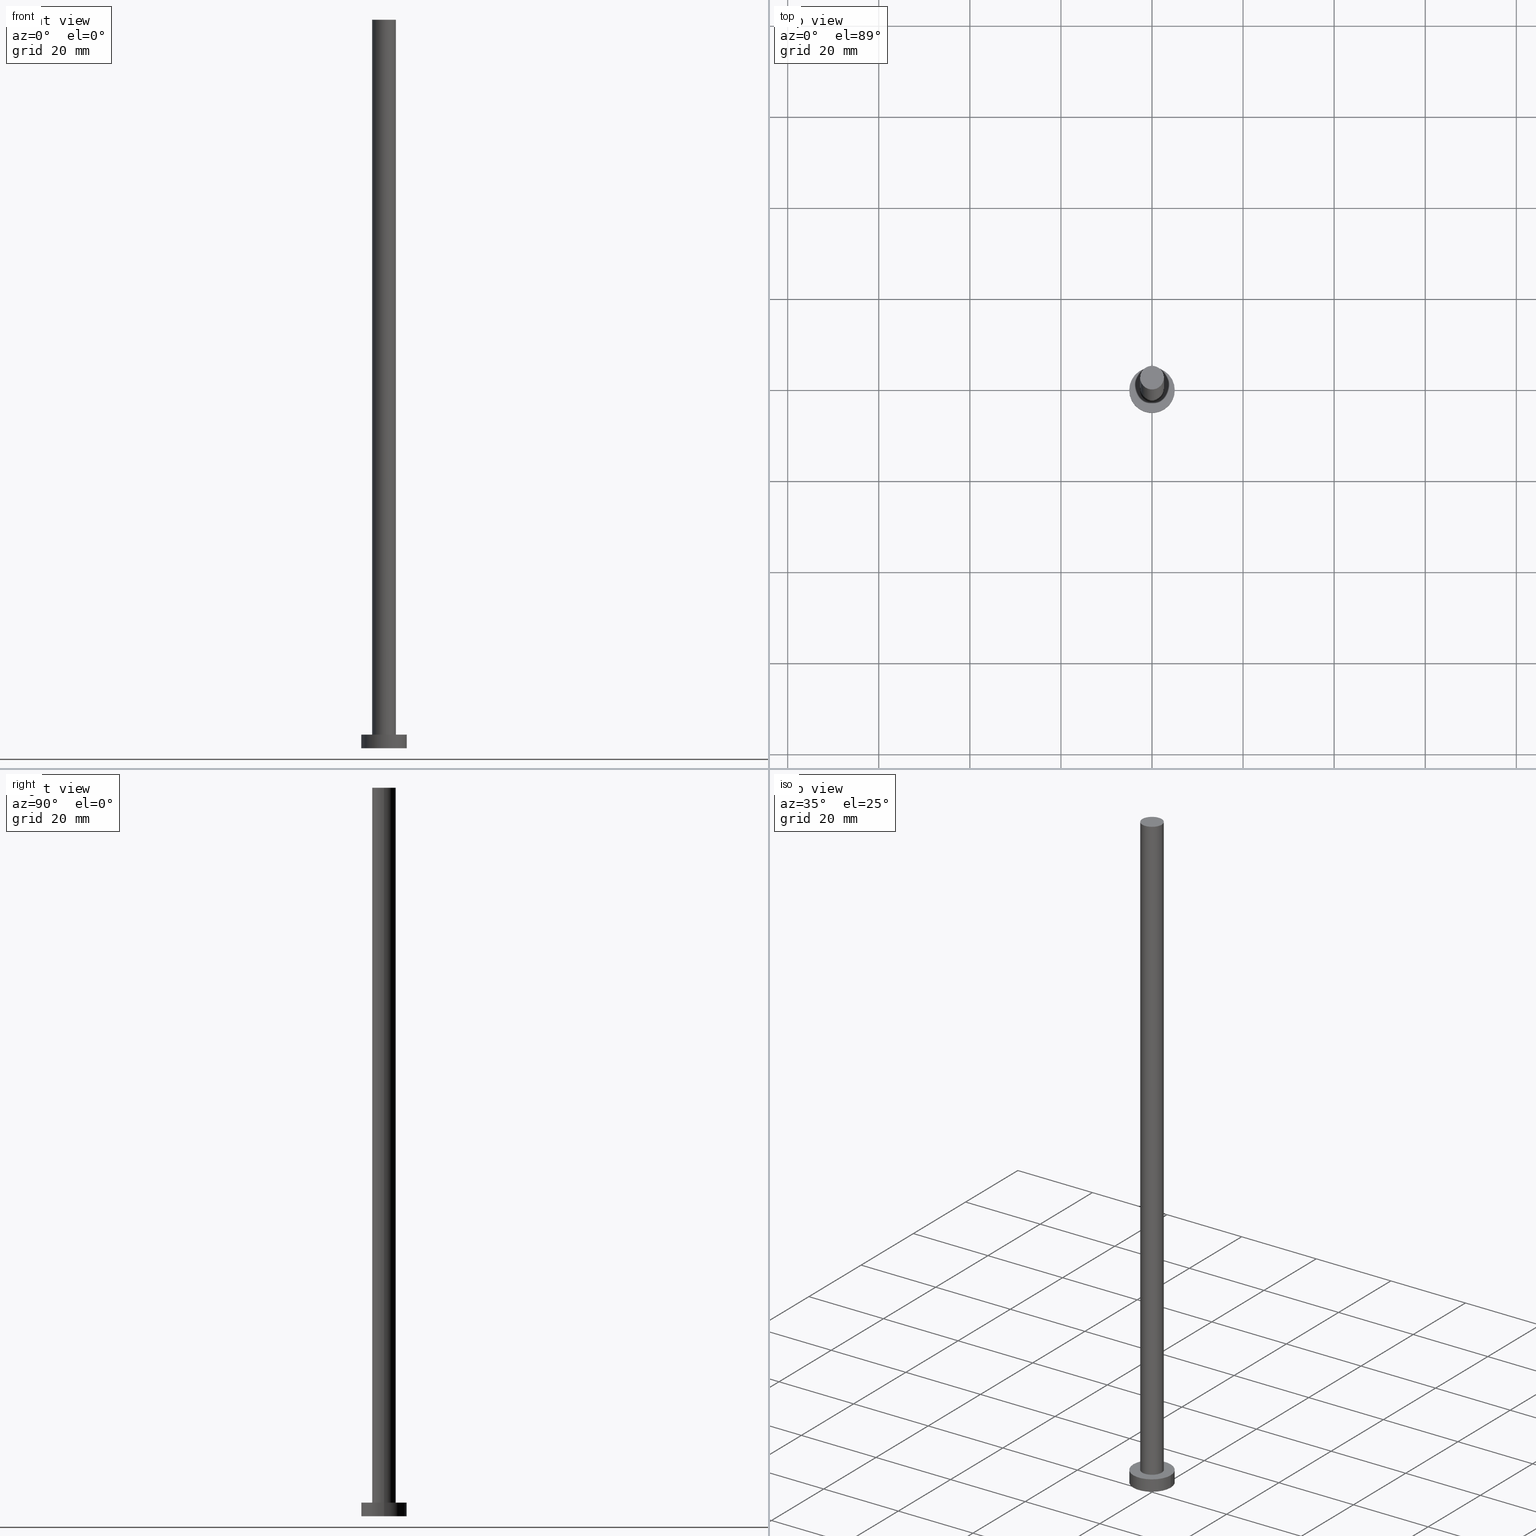
[diagram: canonical four-view strip — front | top / right | iso, engineering-drawing reading convention]
A machine part, canonical four-view strip (front | top / right | iso — engineering-drawing reading convention). The complete STEP part file that produces these views, byte-faithful:
ISO-10303-21;
HEADER;
FILE_DESCRIPTION (( 'STEP AP203' ),
    '1' );
FILE_NAME ('0e90.STEP',
    '2023-02-13T15:49:09',
    ( '' ),
    ( '' ),
    'SwSTEP 2.0',
    'SolidWorks 2019',
    '' );
FILE_SCHEMA (( 'CONFIG_CONTROL_DESIGN' ));
ENDSEC;

DATA;
#1 = ADVANCED_FACE ( 'NONE', ( #232 ), #79, .T. ) ;
#2 = AXIS2_PLACEMENT_3D ( 'NONE', #12, #132, #185 ) ;
#3 = DIRECTION ( 'NONE',  ( -0.000000000000000000, -0.000000000000000000, -1.000000000000000000 ) ) ;
#4 = VECTOR ( 'NONE', #41, 1000.000000000000000 ) ;
#5 = EDGE_CURVE ( 'NONE', #149, #227, #198, .T. ) ;
#6 = DATE_TIME_ROLE ( 'creation_date' ) ;
#7 = ORIENTED_EDGE ( 'NONE', *, *, #10, .T. ) ;
#8 = AXIS2_PLACEMENT_3D ( 'NONE', #93, #50, #172 ) ;
#9 = PLANE ( 'NONE',  #8 ) ;
#10 = EDGE_CURVE ( 'NONE', #98, #206, #136, .T. ) ;
#11 = LINE ( 'NONE', #156, #225 ) ;
#12 = CARTESIAN_POINT ( 'NONE',  ( 0.000000000000000000, 0.000000000000000000, 0.000000000000000000 ) ) ;
#13 = DIRECTION ( 'NONE',  ( -1.000000000000000000, 0.000000000000000000, 0.000000000000000000 ) ) ;
#14 = PRODUCT_DEFINITION_SHAPE ( 'NONE', 'NONE',  #17 ) ;
#15 = APPROVAL_DATE_TIME ( #190, #230 ) ;
#16 = ORIENTED_EDGE ( 'NONE', *, *, #5, .T. ) ;
#17 = PRODUCT_DEFINITION ( 'NEZN�M�', '', #91, #119 ) ;
#18 = DIRECTION ( 'NONE',  ( 0.000000000000000000, 0.000000000000000000, 1.000000000000000000 ) ) ;
#19 = APPLICATION_CONTEXT ( 'configuration controlled 3d designs of mechanical parts and assemblies' ) ;
#20 = PERSON_AND_ORGANIZATION_ROLE ( 'classification_officer' ) ;
#21 = ADVANCED_FACE ( 'NONE', ( #72 ), #229, .T. ) ;
#22 = EDGE_CURVE ( 'NONE', #188, #245, #192, .T. ) ;
#23 = CARTESIAN_POINT ( 'NONE',  ( 5.000000000000000000, 6.123233995736766282E-16, 0.000000000000000000 ) ) ;
#24 = ORIENTED_EDGE ( 'NONE', *, *, #199, .T. ) ;
#25 = ADVANCED_FACE ( 'NONE', ( #154, #226 ), #49, .T. ) ;
#26 = APPROVAL_ROLE ( '' ) ;
#27 = COORDINATED_UNIVERSAL_TIME_OFFSET ( 1, 0, .AHEAD. ) ;
#28 = ORIENTED_EDGE ( 'NONE', *, *, #181, .T. ) ;
#29 = EDGE_CURVE ( 'NONE', #74, #118, #11, .T. ) ;
#30 = DIRECTION ( 'NONE',  ( 0.000000000000000000, 0.000000000000000000, 1.000000000000000000 ) ) ;
#31 = LOCAL_TIME ( 16, 49, 9.000000000000000000, #159 ) ;
#32 = APPLICATION_PROTOCOL_DEFINITION ( 'international standard', 'config_control_design', 1994, #59 ) ;
#33 = CARTESIAN_POINT ( 'NONE',  ( 0.000000000000000000, 0.000000000000000000, 3.000000000000000000 ) ) ;
#34 = PERSON_AND_ORGANIZATION_ROLE ( 'creator' ) ;
#35 = ORIENTED_EDGE ( 'NONE', *, *, #100, .F. ) ;
#36 = COORDINATED_UNIVERSAL_TIME_OFFSET ( 1, 0, .AHEAD. ) ;
#37 = DIRECTION ( 'NONE',  ( -0.000000000000000000, -0.000000000000000000, -1.000000000000000000 ) ) ;
#38 = AXIS2_PLACEMENT_3D ( 'NONE', #130, #200, #87 ) ;
#39 = EDGE_CURVE ( 'NONE', #188, #149, #175, .T. ) ;
#40 = CARTESIAN_POINT ( 'NONE',  ( 0.000000000000000000, 0.000000000000000000, 3.000000000000000000 ) ) ;
#41 = DIRECTION ( 'NONE',  ( -0.000000000000000000, -0.000000000000000000, -1.000000000000000000 ) ) ;
#42 = EDGE_LOOP ( 'NONE', ( #140, #189 ) ) ;
#43 = APPROVAL_PERSON_ORGANIZATION ( #250, #65, #78 ) ;
#44 = EDGE_LOOP ( 'NONE', ( #46, #121, #28, #86 ) ) ;
#45 = CC_DESIGN_PERSON_AND_ORGANIZATION_ASSIGNMENT ( #157, #34, ( #91 ) ) ;
#46 = ORIENTED_EDGE ( 'NONE', *, *, #166, .F. ) ;
#47 = VECTOR ( 'NONE', #180, 1000.000000000000000 ) ;
#48 = FACE_OUTER_BOUND ( 'NONE', #203, .T. ) ;
#49 = PLANE ( 'NONE',  #178 ) ;
#50 = DIRECTION ( 'NONE',  ( 0.000000000000000000, 0.000000000000000000, 1.000000000000000000 ) ) ;
#51 = ORIENTED_EDGE ( 'NONE', *, *, #117, .F. ) ;
#52 = PERSON_AND_ORGANIZATION_ROLE ( 'design_supplier' ) ;
#53 = ORIENTED_EDGE ( 'NONE', *, *, #39, .T. ) ;
#54 = PRODUCT ( '0e90', '0e90', '', ( #95 ) ) ;
#55 = DIRECTION ( 'NONE',  ( 0.000000000000000000, 0.000000000000000000, 1.000000000000000000 ) ) ;
#56 = DATE_AND_TIME ( #179, #81 ) ;
#57 = CARTESIAN_POINT ( 'NONE',  ( -2.600000000000000089, 0.000000000000000000, 160.0000000000000000 ) ) ;
#58 = LOCAL_TIME ( 16, 49, 9.000000000000000000, #170 ) ;
#59 = APPLICATION_CONTEXT ( 'configuration controlled 3d designs of mechanical parts and assemblies' ) ;
#60 = DIRECTION ( 'NONE',  ( 0.000000000000000000, 0.000000000000000000, 1.000000000000000000 ) ) ;
#61 = APPROVAL_DATE_TIME ( #182, #110 ) ;
#62 = ADVANCED_BREP_SHAPE_REPRESENTATION ( '0e90', ( #108, #2 ), #123 ) ;
#63 = EDGE_CURVE ( 'NONE', #118, #206, #134, .T. ) ;
#64 = EDGE_LOOP ( 'NONE', ( #176, #191 ) ) ;
#65 = APPROVAL ( #90, 'NEUR�EN�' ) ;
#66 = CIRCLE ( 'NONE', #208, 2.600000000000000089 ) ;
#67 = CLOSED_SHELL ( 'NONE', ( #197, #21, #220, #25, #247, #1, #224 ) ) ;
#68 = FACE_OUTER_BOUND ( 'NONE', #112, .T. ) ;
#69 = CARTESIAN_POINT ( 'NONE',  ( 2.600000000000000089, 3.184081677783118191E-16, 3.000000000000000000 ) ) ;
#70 = ORIENTED_EDGE ( 'NONE', *, *, #162, .F. ) ;
#71 = APPROVAL_DATE_TIME ( #75, #65 ) ;
#72 = FACE_OUTER_BOUND ( 'NONE', #139, .T. ) ;
#73 = PERSON_AND_ORGANIZATION ( #169, #223 ) ;
#74 = VERTEX_POINT ( 'NONE', #255 ) ;
#75 = DATE_AND_TIME ( #209, #31 ) ;
#76 = CARTESIAN_POINT ( 'NONE',  ( -2.600000000000000089, 0.000000000000000000, 160.0000000000000000 ) ) ;
#77 = CC_DESIGN_PERSON_AND_ORGANIZATION_ASSIGNMENT ( #102, #20, ( #238 ) ) ;
#78 = APPROVAL_ROLE ( '' ) ;
#79 = CYLINDRICAL_SURFACE ( 'NONE', #210, 2.600000000000000089 ) ;
#80 = LINE ( 'NONE', #241, #4 ) ;
#81 = LOCAL_TIME ( 16, 49, 9.000000000000000000, #254 ) ;
#82 = APPROVAL_ROLE ( '' ) ;
#83 = CARTESIAN_POINT ( 'NONE',  ( 0.000000000000000000, 0.000000000000000000, 3.000000000000000000 ) ) ;
#84 = SHAPE_DEFINITION_REPRESENTATION ( #14, #62 ) ;
#85 = AXIS2_PLACEMENT_3D ( 'NONE', #183, #3, #242 ) ;
#86 = ORIENTED_EDGE ( 'NONE', *, *, #39, .F. ) ;
#87 = DIRECTION ( 'NONE',  ( -1.000000000000000000, 0.000000000000000000, 0.000000000000000000 ) ) ;
#88 = CARTESIAN_POINT ( 'NONE',  ( 0.000000000000000000, 0.000000000000000000, 160.0000000000000000 ) ) ;
#89 = ORIENTED_EDGE ( 'NONE', *, *, #63, .F. ) ;
#90 = APPROVAL_STATUS ( 'not_yet_approved' ) ;
#91 = PRODUCT_DEFINITION_FORMATION_WITH_SPECIFIED_SOURCE ( 'LIBOVOLN�', '', #54, .NOT_KNOWN. ) ;
#92 = EDGE_LOOP ( 'NONE', ( #35, #158, #53, #16 ) ) ;
#93 = CARTESIAN_POINT ( 'NONE',  ( 0.000000000000000000, 0.000000000000000000, 0.000000000000000000 ) ) ;
#94 = AXIS2_PLACEMENT_3D ( 'NONE', #33, #37, #243 ) ;
#95 = MECHANICAL_CONTEXT ( 'NONE', #19, 'mechanical' ) ;
#96 = DIRECTION ( 'NONE',  ( -0.000000000000000000, -0.000000000000000000, -1.000000000000000000 ) ) ;
#97 =( NAMED_UNIT ( * ) PLANE_ANGLE_UNIT ( ) SI_UNIT ( $, .RADIAN. ) );
#98 = VERTEX_POINT ( 'NONE', #239 ) ;
#99 = VECTOR ( 'NONE', #213, 1000.000000000000000 ) ;
#100 = EDGE_CURVE ( 'NONE', #245, #227, #80, .T. ) ;
#101 = PERSON_AND_ORGANIZATION ( #169, #223 ) ;
#102 = PERSON_AND_ORGANIZATION ( #169, #223 ) ;
#103 = AXIS2_PLACEMENT_3D ( 'NONE', #152, #249, #171 ) ;
#104 = LOCAL_TIME ( 16, 49, 9.000000000000000000, #27 ) ;
#105 = CYLINDRICAL_SURFACE ( 'NONE', #85, 5.000000000000000000 ) ;
#106 = ORIENTED_EDGE ( 'NONE', *, *, #10, .F. ) ;
#107 = DIRECTION ( 'NONE',  ( 1.000000000000000000, 0.000000000000000000, 0.000000000000000000 ) ) ;
#108 = MANIFOLD_SOLID_BREP ( 'P�idat vysunut�m3', #67 ) ;
#109 = CARTESIAN_POINT ( 'NONE',  ( 2.600000000000000089, 3.184081677783118191E-16, 160.0000000000000000 ) ) ;
#110 = APPROVAL ( #144, 'NEUR�EN�' ) ;
#111 = DIRECTION ( 'NONE',  ( 0.000000000000000000, 0.000000000000000000, 1.000000000000000000 ) ) ;
#112 = EDGE_LOOP ( 'NONE', ( #106, #51, #212, #252 ) ) ;
#113 = APPROVAL_STATUS ( 'not_yet_approved' ) ;
#114 = APPROVAL_PERSON_ORGANIZATION ( #101, #110, #82 ) ;
#115 = DIRECTION ( 'NONE',  ( 1.000000000000000000, 0.000000000000000000, -0.000000000000000000 ) ) ;
#116 = PERSON_AND_ORGANIZATION ( #169, #223 ) ;
#117 = EDGE_CURVE ( 'NONE', #74, #98, #167, .T. ) ;
#118 = VERTEX_POINT ( 'NONE', #127 ) ;
#119 = DESIGN_CONTEXT ( 'detailed design', #59, 'design' ) ;
#120 = DIRECTION ( 'NONE',  ( 1.000000000000000000, 0.000000000000000000, -0.000000000000000000 ) ) ;
#121 = ORIENTED_EDGE ( 'NONE', *, *, #100, .T. ) ;
#122 = ORIENTED_EDGE ( 'NONE', *, *, #29, .F. ) ;
#123 =( GEOMETRIC_REPRESENTATION_CONTEXT ( 3 ) GLOBAL_UNCERTAINTY_ASSIGNED_CONTEXT ( ( #207 ) ) GLOBAL_UNIT_ASSIGNED_CONTEXT ( ( #205, #97, #138 ) ) REPRESENTATION_CONTEXT ( 'NONE', 'WORKASPACE' ) );
#124 = CC_DESIGN_PERSON_AND_ORGANIZATION_ASSIGNMENT ( #73, #202, ( #54 ) ) ;
#125 = CC_DESIGN_SECURITY_CLASSIFICATION ( #238, ( #91 ) ) ;
#126 = DIRECTION ( 'NONE',  ( 0.000000000000000000, 0.000000000000000000, 1.000000000000000000 ) ) ;
#127 = CARTESIAN_POINT ( 'NONE',  ( -5.000000000000000000, 0.000000000000000000, 0.000000000000000000 ) ) ;
#128 = CC_DESIGN_DATE_AND_TIME_ASSIGNMENT ( #244, #6, ( #17 ) ) ;
#129 = AXIS2_PLACEMENT_3D ( 'NONE', #168, #151, #107 ) ;
#130 = CARTESIAN_POINT ( 'NONE',  ( 0.000000000000000000, 0.000000000000000000, 160.0000000000000000 ) ) ;
#131 = FACE_OUTER_BOUND ( 'NONE', #44, .T. ) ;
#132 = DIRECTION ( 'NONE',  ( 0.000000000000000000, 0.000000000000000000, 1.000000000000000000 ) ) ;
#133 = ORIENTED_EDGE ( 'NONE', *, *, #22, .T. ) ;
#134 = CIRCLE ( 'NONE', #234, 5.000000000000000000 ) ;
#135 = CALENDAR_DATE ( 2023, 13, 2 ) ;
#136 = LINE ( 'NONE', #141, #99 ) ;
#137 = CC_DESIGN_PERSON_AND_ORGANIZATION_ASSIGNMENT ( #231, #52, ( #91 ) ) ;
#138 =( NAMED_UNIT ( * ) SI_UNIT ( $, .STERADIAN. ) SOLID_ANGLE_UNIT ( ) );
#139 = EDGE_LOOP ( 'NONE', ( #70, #7, #24, #122 ) ) ;
#140 = ORIENTED_EDGE ( 'NONE', *, *, #5, .F. ) ;
#141 = CARTESIAN_POINT ( 'NONE',  ( 5.000000000000000000, 6.123233995736766282E-16, 3.000000000000000000 ) ) ;
#142 = CALENDAR_DATE ( 2023, 13, 2 ) ;
#143 = CC_DESIGN_APPROVAL ( #65, ( #91 ) ) ;
#144 = APPROVAL_STATUS ( 'not_yet_approved' ) ;
#145 = CIRCLE ( 'NONE', #240, 2.600000000000000089 ) ;
#146 = DIRECTION ( 'NONE',  ( 1.000000000000000000, 0.000000000000000000, 0.000000000000000000 ) ) ;
#147 = DIRECTION ( 'NONE',  ( 1.000000000000000000, 0.000000000000000000, 0.000000000000000000 ) ) ;
#148 = DIRECTION ( 'NONE',  ( 1.000000000000000000, 0.000000000000000000, 0.000000000000000000 ) ) ;
#149 = VERTEX_POINT ( 'NONE', #219 ) ;
#150 = LOCAL_TIME ( 16, 49, 9.000000000000000000, #36 ) ;
#151 = DIRECTION ( 'NONE',  ( 0.000000000000000000, 0.000000000000000000, 1.000000000000000000 ) ) ;
#152 = CARTESIAN_POINT ( 'NONE',  ( 0.000000000000000000, 0.000000000000000000, 160.0000000000000000 ) ) ;
#153 = FACE_OUTER_BOUND ( 'NONE', #221, .T. ) ;
#154 = FACE_BOUND ( 'NONE', #42, .T. ) ;
#155 = CIRCLE ( 'NONE', #161, 5.000000000000000000 ) ;
#156 = CARTESIAN_POINT ( 'NONE',  ( -5.000000000000000000, 0.000000000000000000, 3.000000000000000000 ) ) ;
#157 = PERSON_AND_ORGANIZATION ( #169, #223 ) ;
#158 = ORIENTED_EDGE ( 'NONE', *, *, #22, .F. ) ;
#159 = COORDINATED_UNIVERSAL_TIME_OFFSET ( 1, 0, .AHEAD. ) ;
#160 = ORIENTED_EDGE ( 'NONE', *, *, #199, .F. ) ;
#161 = AXIS2_PLACEMENT_3D ( 'NONE', #40, #177, #253 ) ;
#162 = EDGE_CURVE ( 'NONE', #98, #74, #155, .T. ) ;
#163 = CARTESIAN_POINT ( 'NONE',  ( 0.000000000000000000, 0.000000000000000000, 160.0000000000000000 ) ) ;
#164 = CC_DESIGN_APPROVAL ( #230, ( #17 ) ) ;
#165 = AXIS2_PLACEMENT_3D ( 'NONE', #88, #111, #120 ) ;
#166 = EDGE_CURVE ( 'NONE', #245, #188, #145, .T. ) ;
#167 = CIRCLE ( 'NONE', #184, 5.000000000000000000 ) ;
#168 = CARTESIAN_POINT ( 'NONE',  ( 0.000000000000000000, 0.000000000000000000, 0.000000000000000000 ) ) ;
#169 = PERSON ( 'NEUR�EN�', 'NEUR�EN�', 'NEUR�EN�', ('NEUR�EN�'), ('NEUR�EN�'), ('NEUR�EN�') ) ;
#170 = COORDINATED_UNIVERSAL_TIME_OFFSET ( 1, 0, .AHEAD. ) ;
#171 = DIRECTION ( 'NONE',  ( 1.000000000000000000, 0.000000000000000000, 0.000000000000000000 ) ) ;
#172 = DIRECTION ( 'NONE',  ( 1.000000000000000000, 0.000000000000000000, -0.000000000000000000 ) ) ;
#173 = CARTESIAN_POINT ( 'NONE',  ( 0.000000000000000000, 0.000000000000000000, 160.0000000000000000 ) ) ;
#174 = PERSON_AND_ORGANIZATION_ROLE ( 'creator' ) ;
#175 = LINE ( 'NONE', #76, #47 ) ;
#176 = ORIENTED_EDGE ( 'NONE', *, *, #117, .T. ) ;
#177 = DIRECTION ( 'NONE',  ( 0.000000000000000000, 0.000000000000000000, 1.000000000000000000 ) ) ;
#178 = AXIS2_PLACEMENT_3D ( 'NONE', #204, #30, #115 ) ;
#179 = CALENDAR_DATE ( 2023, 13, 2 ) ;
#180 = DIRECTION ( 'NONE',  ( -0.000000000000000000, -0.000000000000000000, -1.000000000000000000 ) ) ;
#181 = EDGE_CURVE ( 'NONE', #227, #149, #66, .T. ) ;
#182 = DATE_AND_TIME ( #142, #150 ) ;
#183 = CARTESIAN_POINT ( 'NONE',  ( 0.000000000000000000, 0.000000000000000000, 3.000000000000000000 ) ) ;
#184 = AXIS2_PLACEMENT_3D ( 'NONE', #83, #60, #147 ) ;
#185 = DIRECTION ( 'NONE',  ( 1.000000000000000000, 0.000000000000000000, 0.000000000000000000 ) ) ;
#186 = CC_DESIGN_DATE_AND_TIME_ASSIGNMENT ( #56, #217, ( #238 ) ) ;
#187 = PERSON_AND_ORGANIZATION ( #169, #223 ) ;
#188 = VERTEX_POINT ( 'NONE', #57 ) ;
#189 = ORIENTED_EDGE ( 'NONE', *, *, #181, .F. ) ;
#190 = DATE_AND_TIME ( #135, #58 ) ;
#191 = ORIENTED_EDGE ( 'NONE', *, *, #162, .T. ) ;
#192 = CIRCLE ( 'NONE', #103, 2.600000000000000089 ) ;
#193 = APPLICATION_PROTOCOL_DEFINITION ( 'international standard', 'config_control_design', 1994, #19 ) ;
#194 = ORIENTED_EDGE ( 'NONE', *, *, #166, .T. ) ;
#195 = DIRECTION ( 'NONE',  ( -0.000000000000000000, -0.000000000000000000, -1.000000000000000000 ) ) ;
#196 = DIRECTION ( 'NONE',  ( 1.000000000000000000, 0.000000000000000000, 0.000000000000000000 ) ) ;
#197 = ADVANCED_FACE ( 'NONE', ( #131 ), #222, .T. ) ;
#198 = CIRCLE ( 'NONE', #201, 2.600000000000000089 ) ;
#199 = EDGE_CURVE ( 'NONE', #206, #118, #251, .T. ) ;
#200 = DIRECTION ( 'NONE',  ( -0.000000000000000000, -0.000000000000000000, -1.000000000000000000 ) ) ;
#201 = AXIS2_PLACEMENT_3D ( 'NONE', #235, #55, #246 ) ;
#202 = PERSON_AND_ORGANIZATION_ROLE ( 'design_owner' ) ;
#203 = EDGE_LOOP ( 'NONE', ( #133, #194 ) ) ;
#204 = CARTESIAN_POINT ( 'NONE',  ( 0.000000000000000000, 0.000000000000000000, 3.000000000000000000 ) ) ;
#205 =( LENGTH_UNIT ( ) NAMED_UNIT ( * ) SI_UNIT ( .MILLI., .METRE. ) );
#206 = VERTEX_POINT ( 'NONE', #23 ) ;
#207 = UNCERTAINTY_MEASURE_WITH_UNIT (LENGTH_MEASURE( 1.000000000000000082E-05 ), #205, 'distance_accuracy_value', 'NONE');
#208 = AXIS2_PLACEMENT_3D ( 'NONE', #218, #236, #196 ) ;
#209 = CALENDAR_DATE ( 2023, 13, 2 ) ;
#210 = AXIS2_PLACEMENT_3D ( 'NONE', #173, #195, #13 ) ;
#211 = CC_DESIGN_PERSON_AND_ORGANIZATION_ASSIGNMENT ( #187, #174, ( #17 ) ) ;
#212 = ORIENTED_EDGE ( 'NONE', *, *, #29, .T. ) ;
#213 = DIRECTION ( 'NONE',  ( -0.000000000000000000, -0.000000000000000000, -1.000000000000000000 ) ) ;
#214 = APPROVAL_PERSON_ORGANIZATION ( #116, #230, #26 ) ;
#215 = CC_DESIGN_APPROVAL ( #110, ( #238 ) ) ;
#216 = CARTESIAN_POINT ( 'NONE',  ( 0.000000000000000000, 0.000000000000000000, 0.000000000000000000 ) ) ;
#217 = DATE_TIME_ROLE ( 'classification_date' ) ;
#218 = CARTESIAN_POINT ( 'NONE',  ( 0.000000000000000000, 0.000000000000000000, 3.000000000000000000 ) ) ;
#219 = CARTESIAN_POINT ( 'NONE',  ( -2.600000000000000089, 0.000000000000000000, 3.000000000000000000 ) ) ;
#220 = ADVANCED_FACE ( 'NONE', ( #68 ), #105, .T. ) ;
#221 = EDGE_LOOP ( 'NONE', ( #89, #160 ) ) ;
#222 = CYLINDRICAL_SURFACE ( 'NONE', #38, 2.600000000000000089 ) ;
#223 = ORGANIZATION ( 'NEUR�EN�', 'NEUR�EN�', '' ) ;
#224 = ADVANCED_FACE ( 'NONE', ( #48 ), #228, .T. ) ;
#225 = VECTOR ( 'NONE', #96, 1000.000000000000000 ) ;
#226 = FACE_OUTER_BOUND ( 'NONE', #64, .T. ) ;
#227 = VERTEX_POINT ( 'NONE', #69 ) ;
#228 = PLANE ( 'NONE',  #165 ) ;
#229 = CYLINDRICAL_SURFACE ( 'NONE', #94, 5.000000000000000000 ) ;
#230 = APPROVAL ( #113, 'NEUR�EN�' ) ;
#231 = PERSON_AND_ORGANIZATION ( #169, #223 ) ;
#232 = FACE_OUTER_BOUND ( 'NONE', #92, .T. ) ;
#233 = SECURITY_CLASSIFICATION_LEVEL ( 'unclassified' ) ;
#234 = AXIS2_PLACEMENT_3D ( 'NONE', #216, #18, #148 ) ;
#235 = CARTESIAN_POINT ( 'NONE',  ( 0.000000000000000000, 0.000000000000000000, 3.000000000000000000 ) ) ;
#236 = DIRECTION ( 'NONE',  ( 0.000000000000000000, 0.000000000000000000, 1.000000000000000000 ) ) ;
#237 = PRODUCT_RELATED_PRODUCT_CATEGORY ( 'detail', '', ( #54 ) ) ;
#238 = SECURITY_CLASSIFICATION ( '', '', #233 ) ;
#239 = CARTESIAN_POINT ( 'NONE',  ( 5.000000000000000000, 6.123233995736766282E-16, 3.000000000000000000 ) ) ;
#240 = AXIS2_PLACEMENT_3D ( 'NONE', #163, #126, #146 ) ;
#241 = CARTESIAN_POINT ( 'NONE',  ( 2.600000000000000089, 3.184081677783118191E-16, 160.0000000000000000 ) ) ;
#242 = DIRECTION ( 'NONE',  ( -1.000000000000000000, 0.000000000000000000, 0.000000000000000000 ) ) ;
#243 = DIRECTION ( 'NONE',  ( -1.000000000000000000, 0.000000000000000000, 0.000000000000000000 ) ) ;
#244 = DATE_AND_TIME ( #248, #104 ) ;
#245 = VERTEX_POINT ( 'NONE', #109 ) ;
#246 = DIRECTION ( 'NONE',  ( 1.000000000000000000, 0.000000000000000000, 0.000000000000000000 ) ) ;
#247 = ADVANCED_FACE ( 'NONE', ( #153 ), #9, .F. ) ;
#248 = CALENDAR_DATE ( 2023, 13, 2 ) ;
#249 = DIRECTION ( 'NONE',  ( 0.000000000000000000, 0.000000000000000000, 1.000000000000000000 ) ) ;
#250 = PERSON_AND_ORGANIZATION ( #169, #223 ) ;
#251 = CIRCLE ( 'NONE', #129, 5.000000000000000000 ) ;
#252 = ORIENTED_EDGE ( 'NONE', *, *, #63, .T. ) ;
#253 = DIRECTION ( 'NONE',  ( 1.000000000000000000, 0.000000000000000000, 0.000000000000000000 ) ) ;
#254 = COORDINATED_UNIVERSAL_TIME_OFFSET ( 1, 0, .AHEAD. ) ;
#255 = CARTESIAN_POINT ( 'NONE',  ( -5.000000000000000000, 0.000000000000000000, 3.000000000000000000 ) ) ;
ENDSEC;
END-ISO-10303-21;
